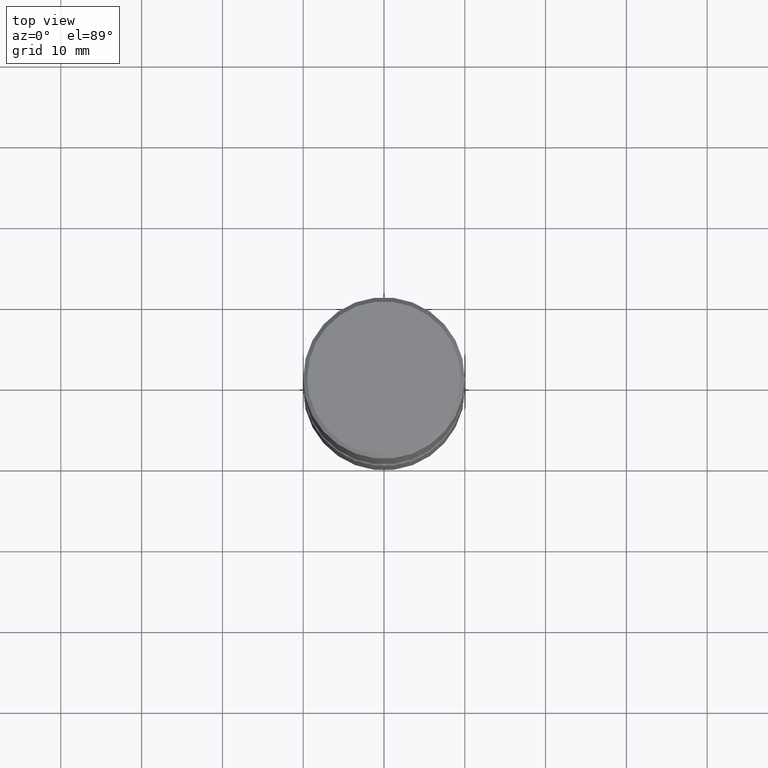
[diagram: clean part render]
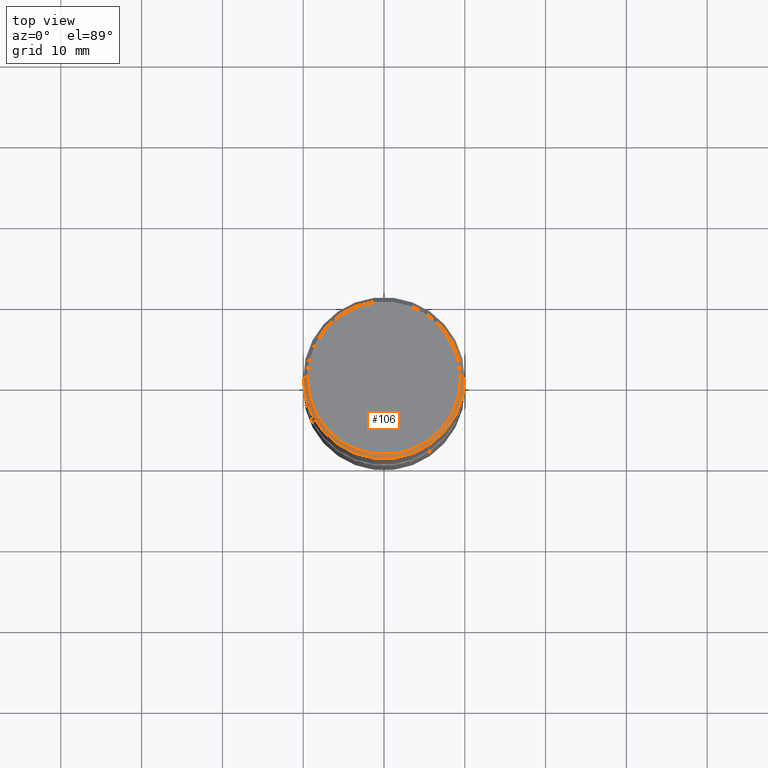
[diagram: same view with one face highlighted and labeled with its STEP entity id]
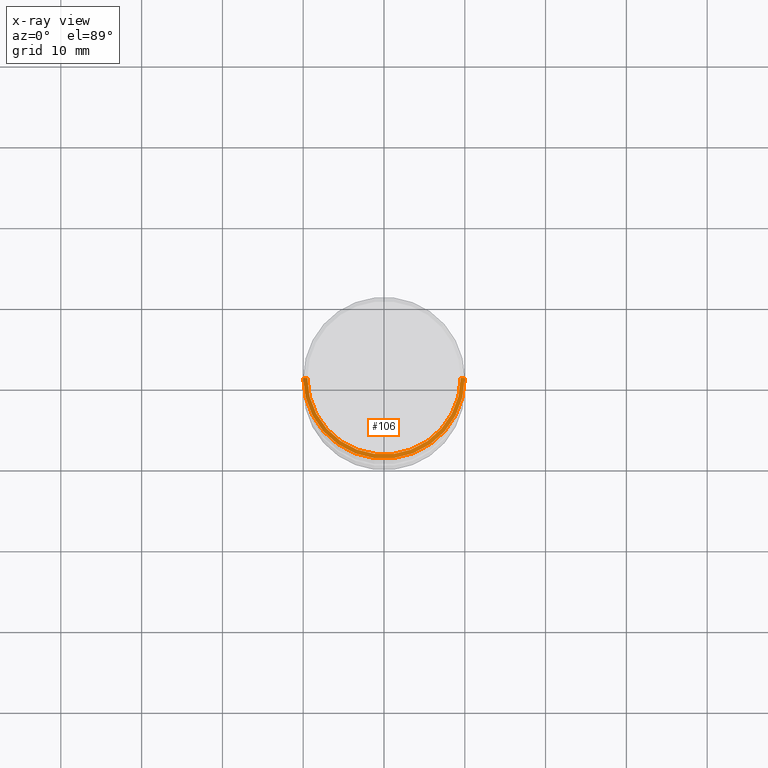
[diagram: x-ray of the same camera — body ghosted, the highlighted face saturated]
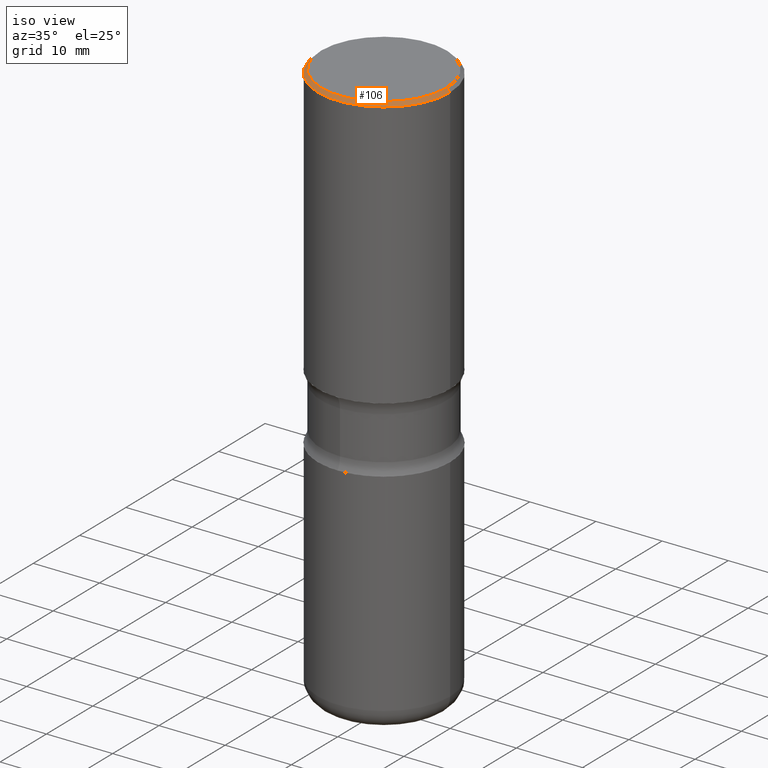
[diagram: same view with one face highlighted and labeled with its STEP entity id]
A machine part, top view. The second image highlights one B-rep face of the part: STEP entity #106.
The next image is the same camera in x-ray: the body ghosted, the highlighted face saturated — about 0% of this face is hidden behind the body in this view.
A second angle (iso view) of the same face is appended — the face is thin or edge-on in the first view.
In plain terms, the highlighted conical surface has half-angle 45 deg.
Its self-contained STEP definition (entity closure, byte-faithful):
#24 = DIRECTION ( 'NONE',  ( -2.445468806185136597E-29, 3.491481338843145583E-15, 1.000000000000000000 ) ) ;
#57 = EDGE_CURVE ( 'NONE', #167, #300, #337, .T. ) ;
#71 = CARTESIAN_POINT ( 'NONE',  ( -3.131554243005659264E-46, 4.471029511141341874E-32, 1.280553747030123384E-17 ) ) ;
#73 = DIRECTION ( 'NONE',  ( 1.000000000000000000, -6.982962677686266711E-15, 0.000000000000000000 ) ) ;
#80 = DIRECTION ( 'NONE',  ( -1.000000000000000000, 6.982962677686266711E-15, 0.000000000000000000 ) ) ;
#95 = VECTOR ( 'NONE', #277, 39.37007874015748143 ) ;
#99 = DIRECTION ( 'NONE',  ( -0.7071067811865459074, 2.468850131082240100E-15, -0.7071067811865491270 ) ) ;
#103 = VECTOR ( 'NONE', #99, 39.37007874015748143 ) ;
#106 = ADVANCED_FACE ( 'NONE', ( #111 ), #207, .T. ) ;
#111 = FACE_OUTER_BOUND ( 'NONE', #352, .T. ) ;
#120 = ORIENTED_EDGE ( 'NONE', *, *, #148, .F. ) ;
#148 = EDGE_CURVE ( 'NONE', #304, #167, #459, .T. ) ;
#151 = DIRECTION ( 'NONE',  ( 1.000000000000000000, -6.982962677686266711E-15, 4.876212485538972316E-29 ) ) ;
#167 = VERTEX_POINT ( 'NONE', #546 ) ;
#206 = CARTESIAN_POINT ( 'NONE',  ( 4.890937612370289799E-31, -6.982962677686315028E-17, -0.02000000000000006981 ) ) ;
#207 = CONICAL_SURFACE ( 'NONE', #543, 0.3937000000000002164, 0.7853981633974460586 ) ;
#230 = CARTESIAN_POINT ( 'NONE',  ( 0.3937000000000002164, -2.770807688499516917E-15, -0.02000000000000006981 ) ) ;
#238 = LINE ( 'NONE', #482, #103 ) ;
#266 = CARTESIAN_POINT ( 'NONE',  ( -0.3737000000000002542, 2.644447966039791030E-15, 1.280553747028286201E-17 ) ) ;
#277 = DIRECTION ( 'NONE',  ( 0.7071067811865459074, -7.319954787623249734E-15, -0.7071067811865491270 ) ) ;
#293 = ORIENTED_EDGE ( 'NONE', *, *, #57, .F. ) ;
#300 = VERTEX_POINT ( 'NONE', #401 ) ;
#304 = VERTEX_POINT ( 'NONE', #266 ) ;
#326 = EDGE_CURVE ( 'NONE', #304, #513, #238, .T. ) ;
#336 = DIRECTION ( 'NONE',  ( 2.445468806185136597E-29, -3.491481338843145583E-15, -1.000000000000000000 ) ) ;
#337 = LINE ( 'NONE', #230, #95 ) ;
#352 = EDGE_LOOP ( 'NONE', ( #293, #120, #514, #437 ) ) ;
#356 = AXIS2_PLACEMENT_3D ( 'NONE', #71, #374, #151 ) ;
#374 = DIRECTION ( 'NONE',  ( -2.445468806185136597E-29, 3.491481338843145583E-15, 1.000000000000000000 ) ) ;
#380 = CARTESIAN_POINT ( 'NONE',  ( -0.3937000000000002164, 2.679362779428221496E-15, -0.02000000000000006981 ) ) ;
#401 = CARTESIAN_POINT ( 'NONE',  ( 0.3937000000000002164, -2.770807688499516917E-15, -0.02000000000000006981 ) ) ;
#437 = ORIENTED_EDGE ( 'NONE', *, *, #471, .T. ) ;
#439 = CIRCLE ( 'NONE', #491, 0.3937000000000002164 ) ;
#459 = CIRCLE ( 'NONE', #356, 0.3737000000000002542 ) ;
#471 = EDGE_CURVE ( 'NONE', #513, #300, #439, .T. ) ;
#482 = CARTESIAN_POINT ( 'NONE',  ( -0.3937000000000002164, 2.679362779428221496E-15, -0.02000000000000006981 ) ) ;
#491 = AXIS2_PLACEMENT_3D ( 'NONE', #206, #24, #73 ) ;
#503 = CARTESIAN_POINT ( 'NONE',  ( 4.890937612370289799E-31, -6.982962677686315028E-17, -0.02000000000000006981 ) ) ;
#513 = VERTEX_POINT ( 'NONE', #380 ) ;
#514 = ORIENTED_EDGE ( 'NONE', *, *, #326, .T. ) ;
#543 = AXIS2_PLACEMENT_3D ( 'NONE', #503, #336, #80 ) ;
#546 = CARTESIAN_POINT ( 'NONE',  ( 0.3737000000000002542, -2.667287895133369937E-15, 1.280553747031968579E-17 ) ) ;